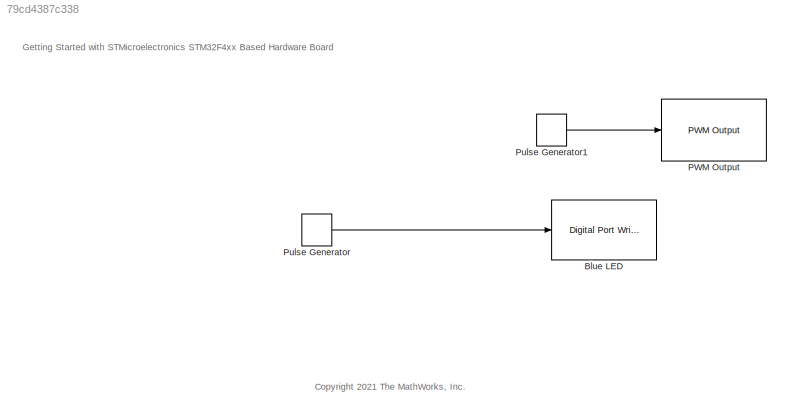
MODEL slx_79cd4387c338
KIND model
CONFIG AbsTol = auto
CONFIG EnableMultiTasking = on
CONFIG FixedStep = auto
CONFIG MaxStep = auto
CONFIG MinStep = auto
CONFIG RelTol = 1e-3
CONFIG SampleTimeConstraint = Unconstrained
CONFIG SolverName = FixedStepAuto
CONFIG StartTime = 0.0
CONFIG StopTime = 45
BLOCK [Reference] Blue LED  REF=stm32f4xxblockslib/Digital Port Write
  SourceBlock = stm32f4xxblockslib/Digital Port Write
  SourceType = stm32cube.blocks.DigitalPortWrite
BLOCK [Reference] PWM Output  REF=stm32f7xxblockslib/PWM Output
  SourceBlock = stm32f7xxblockslib/PWM Output
  SourceType = stm32cube.blocks.PWMOutput
BLOCK [DiscretePulseGenerator] Pulse Generator
  Amplitude = 3
  PhaseDelay = 2
  SampleTime = 0.2
BLOCK [DiscretePulseGenerator] Pulse Generator1
  Amplitude = 2
  PhaseDelay = 2
  SampleTime = 0.2
ANNOTATION (root): Getting Started with STMicroelectronics STM32F4xx Based Hardware Board
ANNOTATION (root): <copyright redacted>
LINE Pulse Generator1:1 -> PWM Output:1
LINE Pulse Generator:1 -> Blue LED:1
